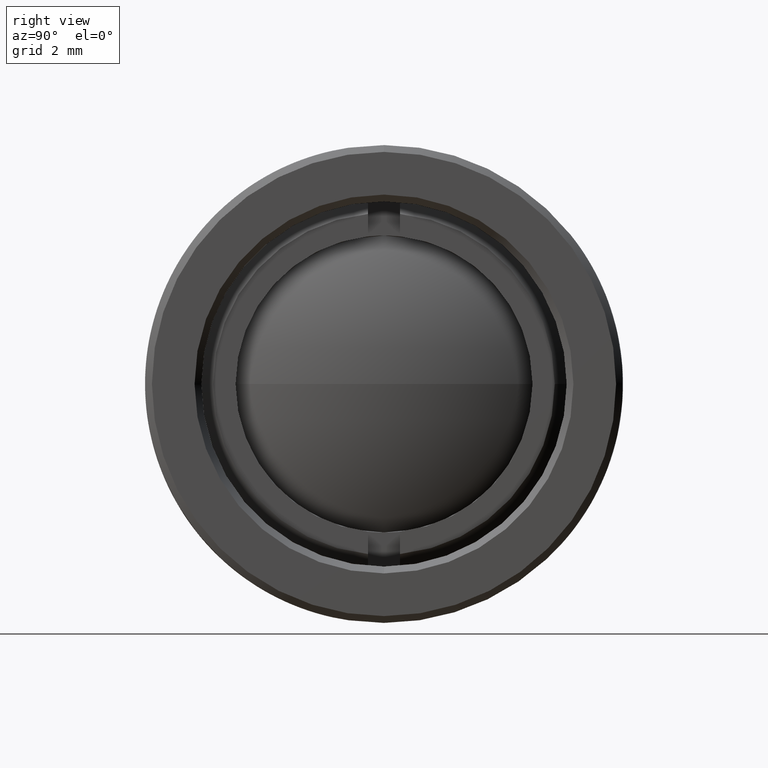
[diagram: clean part render]
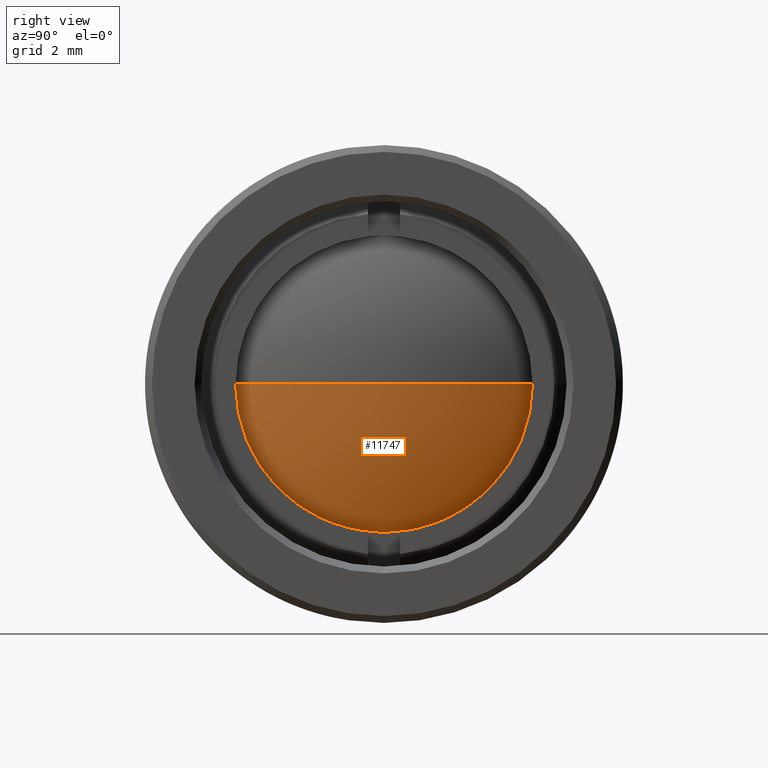
[diagram: same view with one face highlighted and labeled with its STEP entity id]
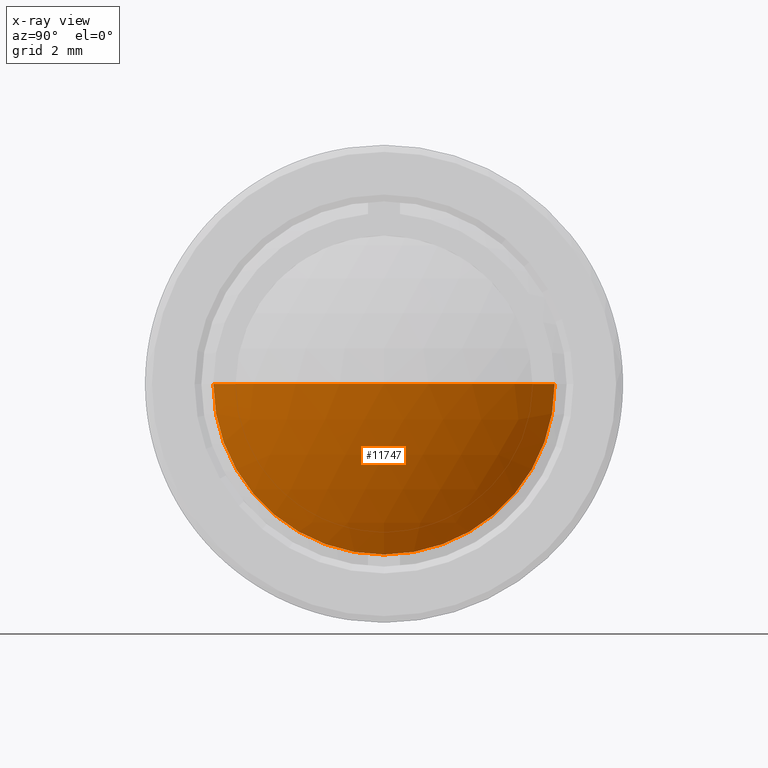
[diagram: x-ray of the same camera — body ghosted, the highlighted face saturated]
A machine part, right view. The second image highlights one B-rep face of the part: STEP entity #11747.
The next image is the same camera in x-ray: the body ghosted, the highlighted face saturated — about 0% of this face is hidden behind the body in this view.
In plain terms, the highlighted spherical surface has radius 12.87 mm.
Its self-contained STEP definition (entity closure, byte-faithful):
#280 = FACE_OUTER_BOUND ( 'NONE', #11542, .T. ) ;
#773 = ORIENTED_EDGE ( 'NONE', *, *, #9376, .F. ) ;
#950 = AXIS2_PLACEMENT_3D ( 'NONE', #8305, #18062, #9690 ) ;
#1146 = DIRECTION ( 'NONE',  ( 0.0000000000000000000, -1.000000000000000000, 1.224646799147353200E-016 ) ) ;
#1576 = CIRCLE ( 'NONE', #17930, 0.5066929133858267800 ) ;
#2693 = CIRCLE ( 'NONE', #10777, 0.5066929133858267800 ) ;
#3010 = ORIENTED_EDGE ( 'NONE', *, *, #8592, .T. ) ;
#3029 = DIRECTION ( 'NONE',  ( 0.0000000000000000000, 0.0000000000000000000, -1.000000000000000000 ) ) ;
#3659 = AXIS2_PLACEMENT_3D ( 'NONE', #6655, #3833, #8062 ) ;
#3833 = DIRECTION ( 'NONE',  ( 0.0000000000000000000, 0.0000000000000000000, 1.000000000000000000 ) ) ;
#4011 = VERTEX_POINT ( 'NONE', #17810 ) ;
#4200 = ORIENTED_EDGE ( 'NONE', *, *, #4740, .T. ) ;
#4740 = EDGE_CURVE ( 'NONE', #4011, #6600, #8452, .T. ) ;
#5594 = VERTEX_POINT ( 'NONE', #9727 ) ;
#6477 = ORIENTED_EDGE ( 'NONE', *, *, #10230, .T. ) ;
#6600 = VERTEX_POINT ( 'NONE', #11324 ) ;
#6620 = VERTEX_POINT ( 'NONE', #14197 ) ;
#6655 = CARTESIAN_POINT ( 'NONE',  ( -0.4650787401574802400, -2.710694776580951600E-034, 2.667043799498168400E-033 ) ) ;
#6870 = DIRECTION ( 'NONE',  ( 1.000000000000000000, 0.0000000000000000000, 0.0000000000000000000 ) ) ;
#7004 = AXIS2_PLACEMENT_3D ( 'NONE', #15212, #6870, #16622 ) ;
#7733 = SPHERICAL_SURFACE ( 'NONE', #3659, 0.5066929133858267800 ) ;
#8062 = DIRECTION ( 'NONE',  ( 0.0000000000000000000, 1.000000000000000000, 0.0000000000000000000 ) ) ;
#8305 = CARTESIAN_POINT ( 'NONE',  ( -0.02435466720999877500, -2.710694776580951600E-034, 2.667043799498168400E-033 ) ) ;
#8452 = CIRCLE ( 'NONE', #7004, 0.2500000000000000600 ) ;
#8592 = EDGE_CURVE ( 'NONE', #6620, #5594, #2693, .T. ) ;
#9376 = EDGE_CURVE ( 'NONE', #4011, #5594, #1576, .T. ) ;
#9527 = DIRECTION ( 'NONE',  ( -0.0000000000000000000, 1.224646799147353200E-016, 1.000000000000000000 ) ) ;
#9690 = DIRECTION ( 'NONE',  ( 0.0000000000000000000, 0.0000000000000000000, -1.000000000000000000 ) ) ;
#9727 = CARTESIAN_POINT ( 'NONE',  ( 0.04161417322834655400, 3.102599272642999000E-017, 2.667043799498168400E-033 ) ) ;
#10230 = EDGE_CURVE ( 'NONE', #6600, #6620, #18001, .T. ) ;
#10777 = AXIS2_PLACEMENT_3D ( 'NONE', #11383, #3029, #12805 ) ;
#11324 = CARTESIAN_POINT ( 'NONE',  ( -0.02435466720999877500, -2.710694776580951600E-034, -0.2500000000000000600 ) ) ;
#11383 = CARTESIAN_POINT ( 'NONE',  ( -0.4650787401574802400, -2.710694776580951600E-034, 2.667043799498168400E-033 ) ) ;
#11542 = EDGE_LOOP ( 'NONE', ( #773, #4200, #6477, #3010 ) ) ;
#11747 = ADVANCED_FACE ( 'NONE', ( #280 ), #7733, .T. ) ;
#12805 = DIRECTION ( 'NONE',  ( -1.000000000000000000, 0.0000000000000000000, 0.0000000000000000000 ) ) ;
#14197 = CARTESIAN_POINT ( 'NONE',  ( -0.02435466720999875800, 0.2500000000000000600, 2.667043799498168400E-033 ) ) ;
#15212 = CARTESIAN_POINT ( 'NONE',  ( -0.02435466720999877500, -2.710694776580951600E-034, 2.667043799498168400E-033 ) ) ;
#16622 = DIRECTION ( 'NONE',  ( 0.0000000000000000000, 0.0000000000000000000, -1.000000000000000000 ) ) ;
#17810 = CARTESIAN_POINT ( 'NONE',  ( -0.02435466720999875800, -0.2500000000000000600, 3.061616997868384300E-017 ) ) ;
#17893 = CARTESIAN_POINT ( 'NONE',  ( -0.4650787401574802400, -2.710694776580951600E-034, 2.667043799498168400E-033 ) ) ;
#17930 = AXIS2_PLACEMENT_3D ( 'NONE', #17893, #9527, #1146 ) ;
#18001 = CIRCLE ( 'NONE', #950, 0.2500000000000000600 ) ;
#18062 = DIRECTION ( 'NONE',  ( 1.000000000000000000, 0.0000000000000000000, 0.0000000000000000000 ) ) ;